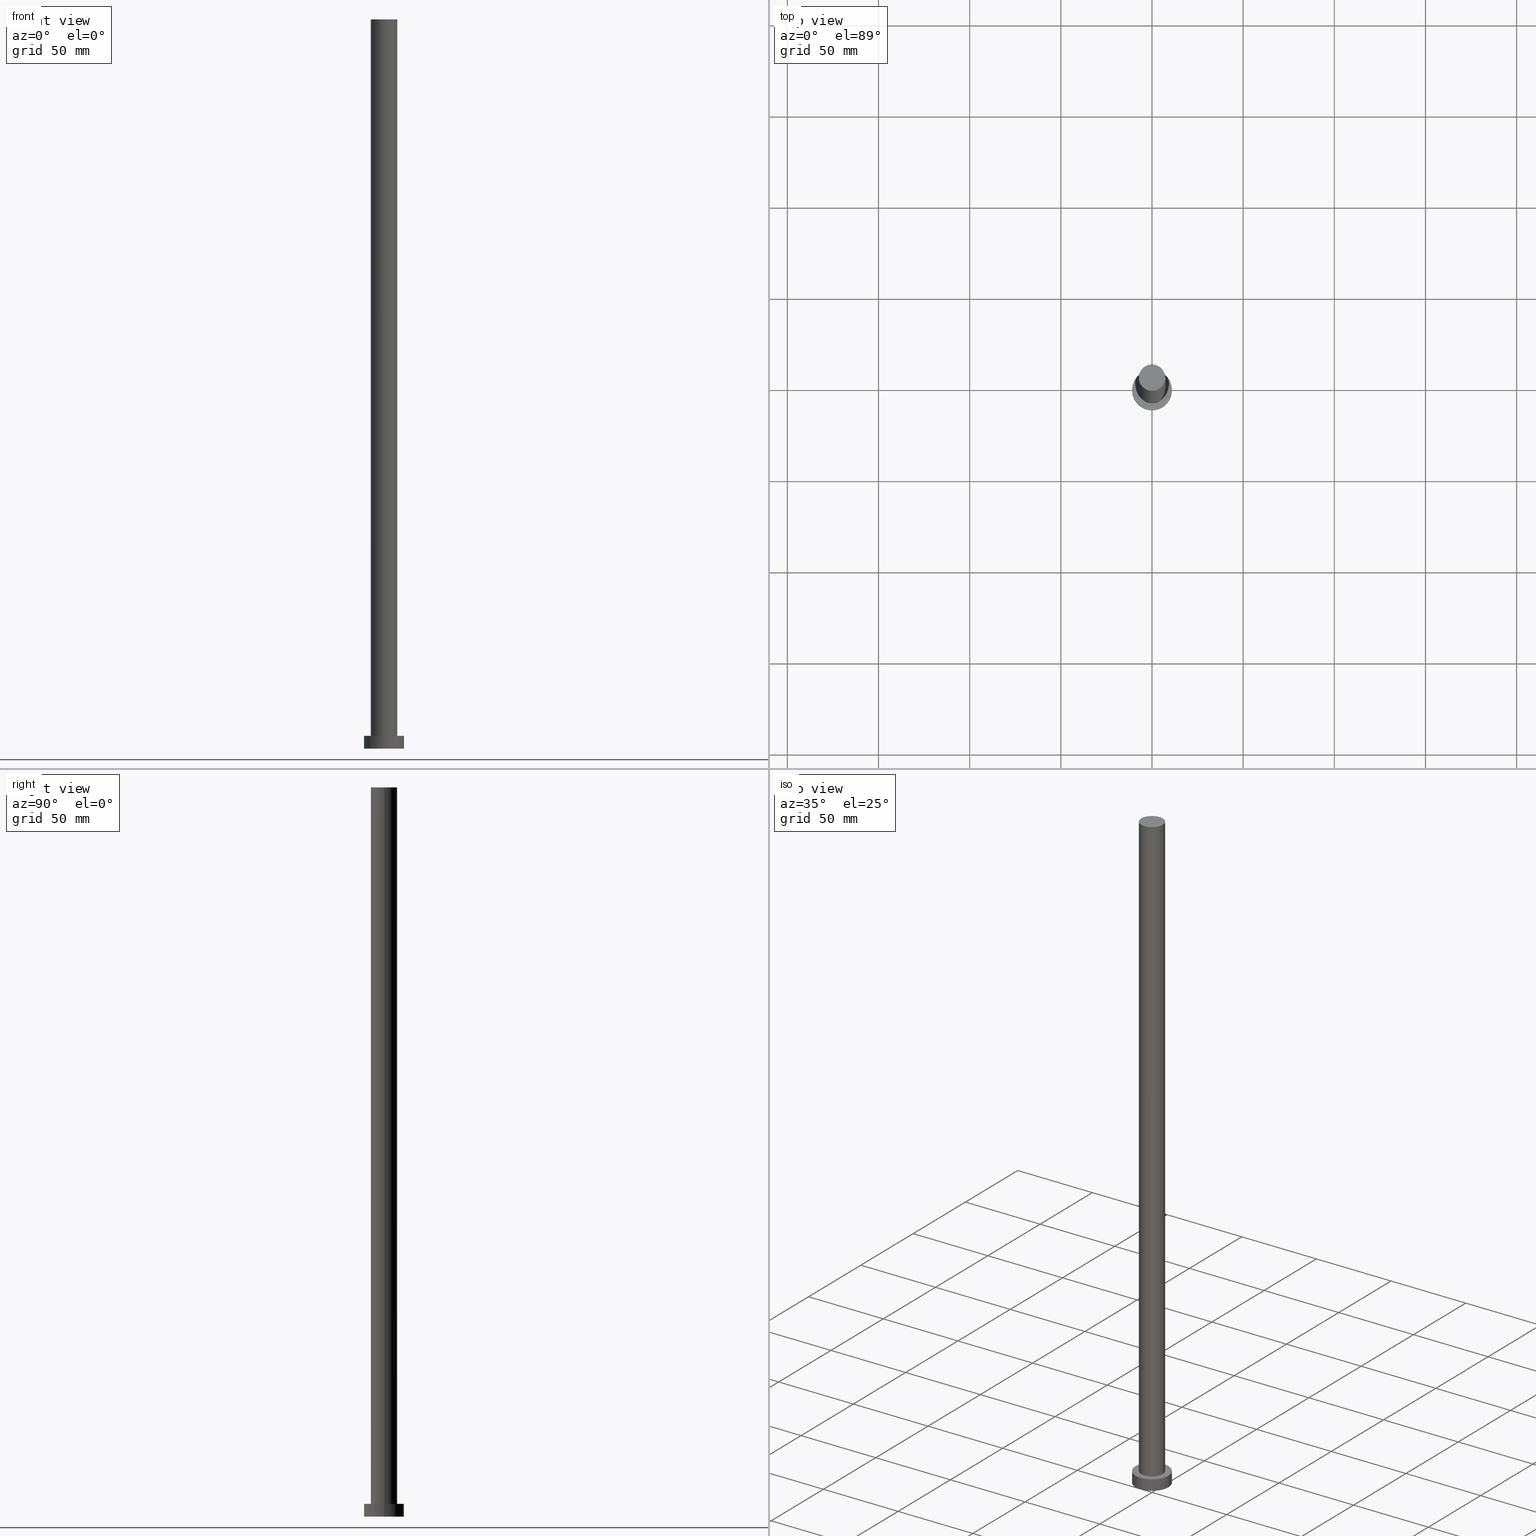
[diagram: canonical four-view strip — front | top / right | iso, engineering-drawing reading convention]
A machine part, canonical four-view strip (front | top / right | iso — engineering-drawing reading convention). The complete STEP part file that produces these views, byte-faithful:
ISO-10303-21;
HEADER;
FILE_DESCRIPTION (( 'STEP AP203' ),
    '1' );
FILE_NAME ('1e98.STEP',
    '2023-02-13T10:40:47',
    ( '' ),
    ( '' ),
    'SwSTEP 2.0',
    'SolidWorks 2019',
    '' );
FILE_SCHEMA (( 'CONFIG_CONTROL_DESIGN' ));
ENDSEC;

DATA;
#1 = ORIENTED_EDGE ( 'NONE', *, *, #135, .F. ) ;
#2 = DIRECTION ( 'NONE',  ( -0.000000000000000000, -0.000000000000000000, -1.000000000000000000 ) ) ;
#3 = PERSON_AND_ORGANIZATION_ROLE ( 'creator' ) ;
#4 = ORIENTED_EDGE ( 'NONE', *, *, #196, .F. ) ;
#5 = EDGE_LOOP ( 'NONE', ( #4, #66, #168, #1 ) ) ;
#6 = ORIENTED_EDGE ( 'NONE', *, *, #31, .T. ) ;
#7 = FACE_OUTER_BOUND ( 'NONE', #201, .T. ) ;
#8 = APPROVAL ( #144, 'NEUR�EN�' ) ;
#9 = ORIENTED_EDGE ( 'NONE', *, *, #31, .F. ) ;
#10 = CARTESIAN_POINT ( 'NONE',  ( 0.000000000000000000, 0.000000000000000000, 7.000000000000000000 ) ) ;
#11 = SHAPE_DEFINITION_REPRESENTATION ( #255, #172 ) ;
#12 = AXIS2_PLACEMENT_3D ( 'NONE', #143, #100, #137 ) ;
#13 = CARTESIAN_POINT ( 'NONE',  ( -11.00000000000000000, 0.000000000000000000, 7.000000000000000000 ) ) ;
#14 = CARTESIAN_POINT ( 'NONE',  ( 0.000000000000000000, 0.000000000000000000, 400.0000000000000000 ) ) ;
#15 = ORIENTED_EDGE ( 'NONE', *, *, #232, .T. ) ;
#16 = DIRECTION ( 'NONE',  ( 0.000000000000000000, 0.000000000000000000, 1.000000000000000000 ) ) ;
#17 = MANIFOLD_SOLID_BREP ( 'P�idat vysunut�m3', #252 ) ;
#18 = CARTESIAN_POINT ( 'NONE',  ( -11.00000000000000000, 0.000000000000000000, 0.000000000000000000 ) ) ;
#19 = CC_DESIGN_DATE_AND_TIME_ASSIGNMENT ( #96, #248, ( #240 ) ) ;
#20 = CARTESIAN_POINT ( 'NONE',  ( 0.000000000000000000, 0.000000000000000000, 0.000000000000000000 ) ) ;
#21 = ORIENTED_EDGE ( 'NONE', *, *, #120, .F. ) ;
#22 = DIRECTION ( 'NONE',  ( -1.000000000000000000, 0.000000000000000000, 0.000000000000000000 ) ) ;
#23 = FACE_OUTER_BOUND ( 'NONE', #73, .T. ) ;
#24 = ORIENTED_EDGE ( 'NONE', *, *, #247, .T. ) ;
#25 = CC_DESIGN_APPROVAL ( #75, ( #240 ) ) ;
#26 = DIRECTION ( 'NONE',  ( 1.000000000000000000, 0.000000000000000000, 0.000000000000000000 ) ) ;
#27 = DATE_AND_TIME ( #103, #189 ) ;
#28 = DESIGN_CONTEXT ( 'detailed design', #183, 'design' ) ;
#29 = COORDINATED_UNIVERSAL_TIME_OFFSET ( 1, 0, .AHEAD. ) ;
#30 = CYLINDRICAL_SURFACE ( 'NONE', #249, 11.00000000000000000 ) ;
#31 = EDGE_CURVE ( 'NONE', #111, #165, #77, .T. ) ;
#32 = AXIS2_PLACEMENT_3D ( 'NONE', #14, #122, #176 ) ;
#33 = APPLICATION_PROTOCOL_DEFINITION ( 'international standard', 'config_control_design', 1994, #183 ) ;
#34 = DIRECTION ( 'NONE',  ( -1.000000000000000000, 0.000000000000000000, 0.000000000000000000 ) ) ;
#35 = VECTOR ( 'NONE', #68, 1000.000000000000000 ) ;
#36 = ORIENTED_EDGE ( 'NONE', *, *, #79, .T. ) ;
#37 = CC_DESIGN_PERSON_AND_ORGANIZATION_ASSIGNMENT ( #156, #229, ( #197 ) ) ;
#38 = CC_DESIGN_SECURITY_CLASSIFICATION ( #240, ( #197 ) ) ;
#39 = DIRECTION ( 'NONE',  ( -0.000000000000000000, -0.000000000000000000, -1.000000000000000000 ) ) ;
#40 = CARTESIAN_POINT ( 'NONE',  ( 0.000000000000000000, 0.000000000000000000, 7.000000000000000000 ) ) ;
#41 = COORDINATED_UNIVERSAL_TIME_OFFSET ( 1, 0, .AHEAD. ) ;
#42 = DIRECTION ( 'NONE',  ( -0.000000000000000000, -0.000000000000000000, -1.000000000000000000 ) ) ;
#43 = ADVANCED_FACE ( 'NONE', ( #7 ), #125, .F. ) ;
#44 = CIRCLE ( 'NONE', #211, 7.250000000000000000 ) ;
#45 = LINE ( 'NONE', #225, #35 ) ;
#46 = DIRECTION ( 'NONE',  ( 1.000000000000000000, 0.000000000000000000, -0.000000000000000000 ) ) ;
#47 = PRODUCT_RELATED_PRODUCT_CATEGORY ( 'detail', '', ( #78 ) ) ;
#48 = ORIENTED_EDGE ( 'NONE', *, *, #148, .T. ) ;
#49 = AXIS2_PLACEMENT_3D ( 'NONE', #184, #128, #46 ) ;
#50 = CARTESIAN_POINT ( 'NONE',  ( -7.250000000000000000, 0.000000000000000000, 7.000000000000000000 ) ) ;
#51 = CC_DESIGN_PERSON_AND_ORGANIZATION_ASSIGNMENT ( #188, #191, ( #240 ) ) ;
#52 = APPROVAL_STATUS ( 'not_yet_approved' ) ;
#53 = APPROVAL_DATE_TIME ( #243, #75 ) ;
#54 = DIRECTION ( 'NONE',  ( -0.000000000000000000, -0.000000000000000000, -1.000000000000000000 ) ) ;
#55 = PERSON_AND_ORGANIZATION_ROLE ( 'creator' ) ;
#56 = APPROVAL ( #177, 'NEUR�EN�' ) ;
#57 = COORDINATED_UNIVERSAL_TIME_OFFSET ( 1, 0, .AHEAD. ) ;
#58 = CARTESIAN_POINT ( 'NONE',  ( 7.250000000000000000, 8.878689293818310074E-16, 400.0000000000000000 ) ) ;
#59 = EDGE_LOOP ( 'NONE', ( #233, #70, #48, #105 ) ) ;
#60 = FACE_OUTER_BOUND ( 'NONE', #59, .T. ) ;
#61 = ADVANCED_FACE ( 'NONE', ( #23 ), #107, .T. ) ;
#62 = CARTESIAN_POINT ( 'NONE',  ( 0.000000000000000000, 0.000000000000000000, 7.000000000000000000 ) ) ;
#63 = VECTOR ( 'NONE', #69, 1000.000000000000000 ) ;
#64 = AXIS2_PLACEMENT_3D ( 'NONE', #20, #16, #179 ) ;
#65 = DIRECTION ( 'NONE',  ( 1.000000000000000000, 0.000000000000000000, 0.000000000000000000 ) ) ;
#66 = ORIENTED_EDGE ( 'NONE', *, *, #72, .T. ) ;
#67 = DATE_AND_TIME ( #180, #142 ) ;
#68 = DIRECTION ( 'NONE',  ( -0.000000000000000000, -0.000000000000000000, -1.000000000000000000 ) ) ;
#69 = DIRECTION ( 'NONE',  ( -0.000000000000000000, -0.000000000000000000, -1.000000000000000000 ) ) ;
#70 = ORIENTED_EDGE ( 'NONE', *, *, #215, .T. ) ;
#71 = VERTEX_POINT ( 'NONE', #150 ) ;
#72 = EDGE_CURVE ( 'NONE', #165, #138, #237, .T. ) ;
#73 = EDGE_LOOP ( 'NONE', ( #205, #9, #141, #36 ) ) ;
#74 = AXIS2_PLACEMENT_3D ( 'NONE', #244, #114, #190 ) ;
#75 = APPROVAL ( #52, 'NEUR�EN�' ) ;
#76 = CARTESIAN_POINT ( 'NONE',  ( 11.00000000000000000, 1.347111479062088405E-15, 0.000000000000000000 ) ) ;
#77 = CIRCLE ( 'NONE', #161, 11.00000000000000000 ) ;
#78 = PRODUCT ( '1e98', '1e98', '', ( #199 ) ) ;
#79 = EDGE_CURVE ( 'NONE', #203, #138, #154, .T. ) ;
#80 = DATE_AND_TIME ( #254, #118 ) ;
#81 = PERSON_AND_ORGANIZATION ( #88, #104 ) ;
#82 = ORIENTED_EDGE ( 'NONE', *, *, #196, .T. ) ;
#83 = ORIENTED_EDGE ( 'NONE', *, *, #215, .F. ) ;
#84 = APPROVAL_DATE_TIME ( #80, #56 ) ;
#85 = ORIENTED_EDGE ( 'NONE', *, *, #247, .F. ) ;
#86 = CARTESIAN_POINT ( 'NONE',  ( 11.00000000000000000, 1.347111479062088405E-15, 7.000000000000000000 ) ) ;
#87 = EDGE_CURVE ( 'NONE', #71, #90, #45, .T. ) ;
#88 = PERSON ( 'NEUR�EN�', 'NEUR�EN�', 'NEUR�EN�', ('NEUR�EN�'), ('NEUR�EN�'), ('NEUR�EN�') ) ;
#89 = CARTESIAN_POINT ( 'NONE',  ( 0.000000000000000000, 0.000000000000000000, 7.000000000000000000 ) ) ;
#90 = VERTEX_POINT ( 'NONE', #50 ) ;
#91 = APPROVAL_ROLE ( '' ) ;
#92 = LINE ( 'NONE', #13, #246 ) ;
#93 = CALENDAR_DATE ( 2023, 13, 2 ) ;
#94 = CARTESIAN_POINT ( 'NONE',  ( 7.250000000000000000, 8.878689293818310074E-16, 400.0000000000000000 ) ) ;
#95 = ADVANCED_FACE ( 'NONE', ( #242 ), #127, .T. ) ;
#96 = DATE_AND_TIME ( #134, #231 ) ;
#97 = CARTESIAN_POINT ( 'NONE',  ( 11.00000000000000000, 1.347111479062088405E-15, 7.000000000000000000 ) ) ;
#98 = APPROVAL_PERSON_ORGANIZATION ( #163, #8, #219 ) ;
#99 = DIRECTION ( 'NONE',  ( 1.000000000000000000, 0.000000000000000000, 0.000000000000000000 ) ) ;
#100 = DIRECTION ( 'NONE',  ( 0.000000000000000000, 0.000000000000000000, 1.000000000000000000 ) ) ;
#101 = DIRECTION ( 'NONE',  ( 0.000000000000000000, 0.000000000000000000, 1.000000000000000000 ) ) ;
#102 = PRODUCT_DEFINITION ( 'NEZN�M�', '', #197, #28 ) ;
#103 = CALENDAR_DATE ( 2023, 13, 2 ) ;
#104 = ORGANIZATION ( 'NEUR�EN�', 'NEUR�EN�', '' ) ;
#105 = ORIENTED_EDGE ( 'NONE', *, *, #87, .F. ) ;
#106 = CARTESIAN_POINT ( 'NONE',  ( -11.00000000000000000, 0.000000000000000000, 7.000000000000000000 ) ) ;
#107 = CYLINDRICAL_SURFACE ( 'NONE', #187, 11.00000000000000000 ) ;
#108 = CIRCLE ( 'NONE', #193, 11.00000000000000000 ) ;
#109 = CIRCLE ( 'NONE', #32, 7.250000000000000000 ) ;
#110 = EDGE_LOOP ( 'NONE', ( #83, #85, #214, #15 ) ) ;
#111 = VERTEX_POINT ( 'NONE', #106 ) ;
#112 = AXIS2_PLACEMENT_3D ( 'NONE', #238, #149, #131 ) ;
#113 = APPLICATION_CONTEXT ( 'configuration controlled 3d designs of mechanical parts and assemblies' ) ;
#114 = DIRECTION ( 'NONE',  ( -0.000000000000000000, -0.000000000000000000, -1.000000000000000000 ) ) ;
#115 = ADVANCED_FACE ( 'NONE', ( #224, #152 ), #186, .T. ) ;
#116 = FACE_OUTER_BOUND ( 'NONE', #110, .T. ) ;
#117 = PERSON_AND_ORGANIZATION ( #88, #104 ) ;
#118 = LOCAL_TIME ( 11, 40, 47.00000000000000000, #158 ) ;
#119 =( NAMED_UNIT ( * ) PLANE_ANGLE_UNIT ( ) SI_UNIT ( $, .RADIAN. ) );
#120 = EDGE_CURVE ( 'NONE', #138, #203, #108, .T. ) ;
#121 = CIRCLE ( 'NONE', #223, 11.00000000000000000 ) ;
#122 = DIRECTION ( 'NONE',  ( 0.000000000000000000, 0.000000000000000000, 1.000000000000000000 ) ) ;
#123 = APPLICATION_PROTOCOL_DEFINITION ( 'international standard', 'config_control_design', 1994, #113 ) ;
#124 = COORDINATED_UNIVERSAL_TIME_OFFSET ( 1, 0, .AHEAD. ) ;
#125 = PLANE ( 'NONE',  #49 ) ;
#126 = AXIS2_PLACEMENT_3D ( 'NONE', #216, #39, #157 ) ;
#127 = PLANE ( 'NONE',  #112 ) ;
#128 = DIRECTION ( 'NONE',  ( 0.000000000000000000, 0.000000000000000000, 1.000000000000000000 ) ) ;
#129 = CARTESIAN_POINT ( 'NONE',  ( 0.000000000000000000, 0.000000000000000000, 7.000000000000000000 ) ) ;
#130 =( GEOMETRIC_REPRESENTATION_CONTEXT ( 3 ) GLOBAL_UNCERTAINTY_ASSIGNED_CONTEXT ( ( #153 ) ) GLOBAL_UNIT_ASSIGNED_CONTEXT ( ( #198, #119, #140 ) ) REPRESENTATION_CONTEXT ( 'NONE', 'WORKASPACE' ) );
#131 = DIRECTION ( 'NONE',  ( 1.000000000000000000, 0.000000000000000000, -0.000000000000000000 ) ) ;
#132 = DIRECTION ( 'NONE',  ( 1.000000000000000000, 0.000000000000000000, 0.000000000000000000 ) ) ;
#133 = PERSON_AND_ORGANIZATION ( #88, #104 ) ;
#134 = CALENDAR_DATE ( 2023, 13, 2 ) ;
#135 = EDGE_CURVE ( 'NONE', #111, #203, #92, .T. ) ;
#136 = LOCAL_TIME ( 11, 40, 47.00000000000000000, #29 ) ;
#137 = DIRECTION ( 'NONE',  ( 1.000000000000000000, 0.000000000000000000, 0.000000000000000000 ) ) ;
#138 = VERTEX_POINT ( 'NONE', #76 ) ;
#139 = CARTESIAN_POINT ( 'NONE',  ( 7.250000000000000000, 8.878689293818310074E-16, 7.000000000000000000 ) ) ;
#140 =( NAMED_UNIT ( * ) SI_UNIT ( $, .STERADIAN. ) SOLID_ANGLE_UNIT ( ) );
#141 = ORIENTED_EDGE ( 'NONE', *, *, #135, .T. ) ;
#142 = LOCAL_TIME ( 11, 40, 47.00000000000000000, #41 ) ;
#143 = CARTESIAN_POINT ( 'NONE',  ( 0.000000000000000000, 0.000000000000000000, 400.0000000000000000 ) ) ;
#144 = APPROVAL_STATUS ( 'not_yet_approved' ) ;
#145 = ORIENTED_EDGE ( 'NONE', *, *, #148, .F. ) ;
#146 = AXIS2_PLACEMENT_3D ( 'NONE', #129, #204, #226 ) ;
#147 = EDGE_LOOP ( 'NONE', ( #185, #145 ) ) ;
#148 = EDGE_CURVE ( 'NONE', #218, #90, #178, .T. ) ;
#149 = DIRECTION ( 'NONE',  ( 0.000000000000000000, 0.000000000000000000, 1.000000000000000000 ) ) ;
#150 = CARTESIAN_POINT ( 'NONE',  ( -7.250000000000000000, 0.000000000000000000, 400.0000000000000000 ) ) ;
#151 = ADVANCED_FACE ( 'NONE', ( #116 ), #228, .T. ) ;
#152 = FACE_OUTER_BOUND ( 'NONE', #170, .T. ) ;
#153 = UNCERTAINTY_MEASURE_WITH_UNIT (LENGTH_MEASURE( 1.000000000000000082E-05 ), #198, 'distance_accuracy_value', 'NONE');
#154 = CIRCLE ( 'NONE', #221, 11.00000000000000000 ) ;
#155 = CARTESIAN_POINT ( 'NONE',  ( 0.000000000000000000, 0.000000000000000000, 7.000000000000000000 ) ) ;
#156 = PERSON_AND_ORGANIZATION ( #88, #104 ) ;
#157 = DIRECTION ( 'NONE',  ( -1.000000000000000000, 0.000000000000000000, 0.000000000000000000 ) ) ;
#158 = COORDINATED_UNIVERSAL_TIME_OFFSET ( 1, 0, .AHEAD. ) ;
#159 = CYLINDRICAL_SURFACE ( 'NONE', #126, 7.250000000000000000 ) ;
#160 = CC_DESIGN_PERSON_AND_ORGANIZATION_ASSIGNMENT ( #133, #55, ( #197 ) ) ;
#161 = AXIS2_PLACEMENT_3D ( 'NONE', #220, #202, #26 ) ;
#162 = DIRECTION ( 'NONE',  ( 0.000000000000000000, 0.000000000000000000, 1.000000000000000000 ) ) ;
#163 = PERSON_AND_ORGANIZATION ( #88, #104 ) ;
#164 = CC_DESIGN_PERSON_AND_ORGANIZATION_ASSIGNMENT ( #200, #3, ( #102 ) ) ;
#165 = VERTEX_POINT ( 'NONE', #97 ) ;
#166 = VERTEX_POINT ( 'NONE', #94 ) ;
#167 = VECTOR ( 'NONE', #2, 1000.000000000000000 ) ;
#168 = ORIENTED_EDGE ( 'NONE', *, *, #120, .T. ) ;
#169 = DIRECTION ( 'NONE',  ( 0.000000000000000000, 0.000000000000000000, 1.000000000000000000 ) ) ;
#170 = EDGE_LOOP ( 'NONE', ( #6, #82 ) ) ;
#171 = APPROVAL_PERSON_ORGANIZATION ( #117, #75, #91 ) ;
#172 = ADVANCED_BREP_SHAPE_REPRESENTATION ( '1e98', ( #17, #64 ), #130 ) ;
#173 = CC_DESIGN_PERSON_AND_ORGANIZATION_ASSIGNMENT ( #81, #213, ( #78 ) ) ;
#174 = AXIS2_PLACEMENT_3D ( 'NONE', #10, #206, #132 ) ;
#175 = DIRECTION ( 'NONE',  ( -0.000000000000000000, -0.000000000000000000, -1.000000000000000000 ) ) ;
#176 = DIRECTION ( 'NONE',  ( 1.000000000000000000, 0.000000000000000000, 0.000000000000000000 ) ) ;
#177 = APPROVAL_STATUS ( 'not_yet_approved' ) ;
#178 = CIRCLE ( 'NONE', #174, 7.250000000000000000 ) ;
#179 = DIRECTION ( 'NONE',  ( 1.000000000000000000, 0.000000000000000000, 0.000000000000000000 ) ) ;
#180 = CALENDAR_DATE ( 2023, 13, 2 ) ;
#181 = CC_DESIGN_APPROVAL ( #8, ( #197 ) ) ;
#182 = ORIENTED_EDGE ( 'NONE', *, *, #250, .T. ) ;
#183 = APPLICATION_CONTEXT ( 'configuration controlled 3d designs of mechanical parts and assemblies' ) ;
#184 = CARTESIAN_POINT ( 'NONE',  ( 0.000000000000000000, 0.000000000000000000, 0.000000000000000000 ) ) ;
#185 = ORIENTED_EDGE ( 'NONE', *, *, #232, .F. ) ;
#186 = PLANE ( 'NONE',  #146 ) ;
#187 = AXIS2_PLACEMENT_3D ( 'NONE', #89, #42, #22 ) ;
#188 = PERSON_AND_ORGANIZATION ( #88, #104 ) ;
#189 = LOCAL_TIME ( 11, 40, 47.00000000000000000, #124 ) ;
#190 = DIRECTION ( 'NONE',  ( -1.000000000000000000, 0.000000000000000000, 0.000000000000000000 ) ) ;
#191 = PERSON_AND_ORGANIZATION_ROLE ( 'classification_officer' ) ;
#192 = ADVANCED_FACE ( 'NONE', ( #245 ), #30, .T. ) ;
#193 = AXIS2_PLACEMENT_3D ( 'NONE', #227, #209, #230 ) ;
#194 = PERSON_AND_ORGANIZATION ( #88, #104 ) ;
#195 = EDGE_LOOP ( 'NONE', ( #24, #182 ) ) ;
#196 = EDGE_CURVE ( 'NONE', #165, #111, #121, .T. ) ;
#197 = PRODUCT_DEFINITION_FORMATION_WITH_SPECIFIED_SOURCE ( 'LIBOVOLN�', '', #78, .NOT_KNOWN. ) ;
#198 =( LENGTH_UNIT ( ) NAMED_UNIT ( * ) SI_UNIT ( .MILLI., .METRE. ) );
#199 = MECHANICAL_CONTEXT ( 'NONE', #113, 'mechanical' ) ;
#200 = PERSON_AND_ORGANIZATION ( #88, #104 ) ;
#201 = EDGE_LOOP ( 'NONE', ( #235, #21 ) ) ;
#202 = DIRECTION ( 'NONE',  ( 0.000000000000000000, 0.000000000000000000, 1.000000000000000000 ) ) ;
#203 = VERTEX_POINT ( 'NONE', #18 ) ;
#204 = DIRECTION ( 'NONE',  ( 0.000000000000000000, 0.000000000000000000, 1.000000000000000000 ) ) ;
#205 = ORIENTED_EDGE ( 'NONE', *, *, #72, .F. ) ;
#206 = DIRECTION ( 'NONE',  ( 0.000000000000000000, 0.000000000000000000, 1.000000000000000000 ) ) ;
#207 = ADVANCED_FACE ( 'NONE', ( #60 ), #159, .T. ) ;
#208 = APPROVAL_DATE_TIME ( #27, #8 ) ;
#209 = DIRECTION ( 'NONE',  ( 0.000000000000000000, 0.000000000000000000, 1.000000000000000000 ) ) ;
#210 = SECURITY_CLASSIFICATION_LEVEL ( 'unclassified' ) ;
#211 = AXIS2_PLACEMENT_3D ( 'NONE', #40, #101, #99 ) ;
#212 = APPROVAL_PERSON_ORGANIZATION ( #194, #56, #251 ) ;
#213 = PERSON_AND_ORGANIZATION_ROLE ( 'design_owner' ) ;
#214 = ORIENTED_EDGE ( 'NONE', *, *, #87, .T. ) ;
#215 = EDGE_CURVE ( 'NONE', #166, #218, #234, .T. ) ;
#216 = CARTESIAN_POINT ( 'NONE',  ( 0.000000000000000000, 0.000000000000000000, 400.0000000000000000 ) ) ;
#217 = CIRCLE ( 'NONE', #12, 7.250000000000000000 ) ;
#218 = VERTEX_POINT ( 'NONE', #139 ) ;
#219 = APPROVAL_ROLE ( '' ) ;
#220 = CARTESIAN_POINT ( 'NONE',  ( 0.000000000000000000, 0.000000000000000000, 7.000000000000000000 ) ) ;
#221 = AXIS2_PLACEMENT_3D ( 'NONE', #241, #169, #222 ) ;
#222 = DIRECTION ( 'NONE',  ( 1.000000000000000000, 0.000000000000000000, 0.000000000000000000 ) ) ;
#223 = AXIS2_PLACEMENT_3D ( 'NONE', #62, #162, #65 ) ;
#224 = FACE_BOUND ( 'NONE', #147, .T. ) ;
#225 = CARTESIAN_POINT ( 'NONE',  ( -7.250000000000000000, 0.000000000000000000, 400.0000000000000000 ) ) ;
#226 = DIRECTION ( 'NONE',  ( 1.000000000000000000, 0.000000000000000000, -0.000000000000000000 ) ) ;
#227 = CARTESIAN_POINT ( 'NONE',  ( 0.000000000000000000, 0.000000000000000000, 0.000000000000000000 ) ) ;
#228 = CYLINDRICAL_SURFACE ( 'NONE', #74, 7.250000000000000000 ) ;
#229 = PERSON_AND_ORGANIZATION_ROLE ( 'design_supplier' ) ;
#230 = DIRECTION ( 'NONE',  ( 1.000000000000000000, 0.000000000000000000, 0.000000000000000000 ) ) ;
#231 = LOCAL_TIME ( 11, 40, 47.00000000000000000, #57 ) ;
#232 = EDGE_CURVE ( 'NONE', #90, #218, #44, .T. ) ;
#233 = ORIENTED_EDGE ( 'NONE', *, *, #250, .F. ) ;
#234 = LINE ( 'NONE', #58, #167 ) ;
#235 = ORIENTED_EDGE ( 'NONE', *, *, #79, .F. ) ;
#236 = DATE_TIME_ROLE ( 'creation_date' ) ;
#237 = LINE ( 'NONE', #86, #63 ) ;
#238 = CARTESIAN_POINT ( 'NONE',  ( 0.000000000000000000, 0.000000000000000000, 400.0000000000000000 ) ) ;
#239 = CC_DESIGN_DATE_AND_TIME_ASSIGNMENT ( #67, #236, ( #102 ) ) ;
#240 = SECURITY_CLASSIFICATION ( '', '', #210 ) ;
#241 = CARTESIAN_POINT ( 'NONE',  ( 0.000000000000000000, 0.000000000000000000, 0.000000000000000000 ) ) ;
#242 = FACE_OUTER_BOUND ( 'NONE', #195, .T. ) ;
#243 = DATE_AND_TIME ( #93, #136 ) ;
#244 = CARTESIAN_POINT ( 'NONE',  ( 0.000000000000000000, 0.000000000000000000, 400.0000000000000000 ) ) ;
#245 = FACE_OUTER_BOUND ( 'NONE', #5, .T. ) ;
#246 = VECTOR ( 'NONE', #54, 1000.000000000000000 ) ;
#247 = EDGE_CURVE ( 'NONE', #71, #166, #217, .T. ) ;
#248 = DATE_TIME_ROLE ( 'classification_date' ) ;
#249 = AXIS2_PLACEMENT_3D ( 'NONE', #155, #175, #34 ) ;
#250 = EDGE_CURVE ( 'NONE', #166, #71, #109, .T. ) ;
#251 = APPROVAL_ROLE ( '' ) ;
#252 = CLOSED_SHELL ( 'NONE', ( #207, #192, #61, #115, #43, #151, #95 ) ) ;
#253 = CC_DESIGN_APPROVAL ( #56, ( #102 ) ) ;
#254 = CALENDAR_DATE ( 2023, 13, 2 ) ;
#255 = PRODUCT_DEFINITION_SHAPE ( 'NONE', 'NONE',  #102 ) ;
ENDSEC;
END-ISO-10303-21;
